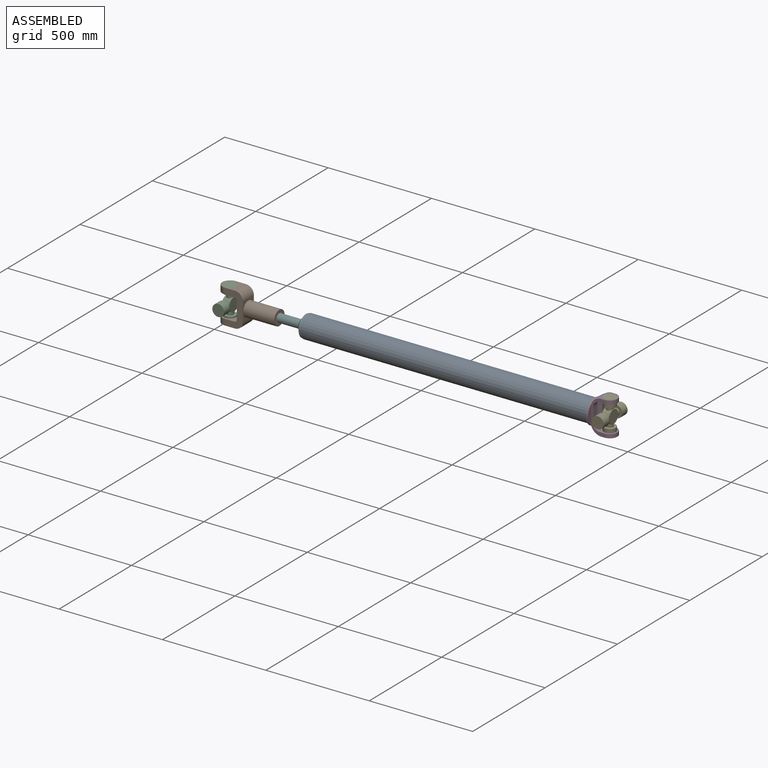
[diagram: assembled view]
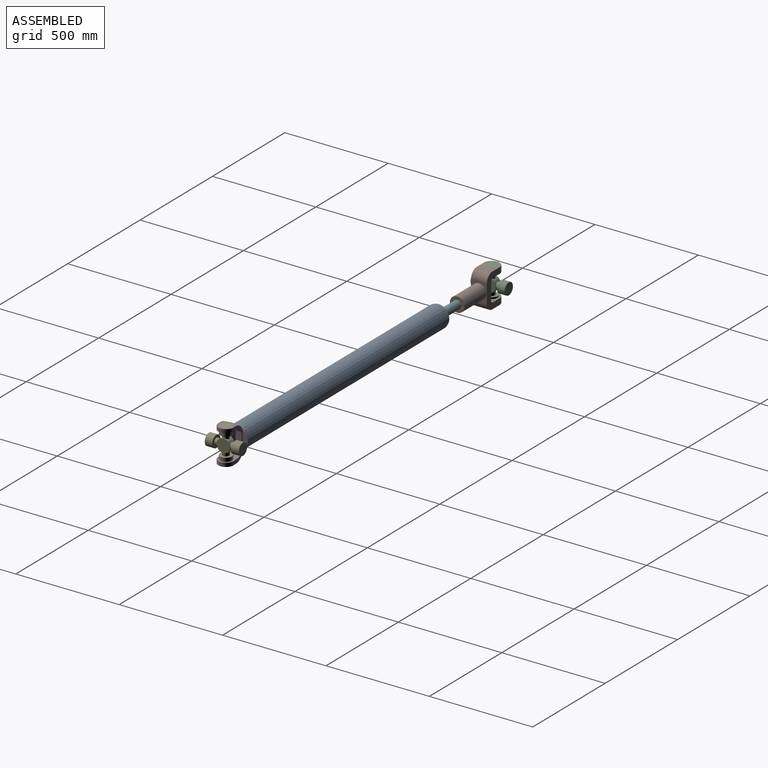
[diagram: assembled view, second angle]
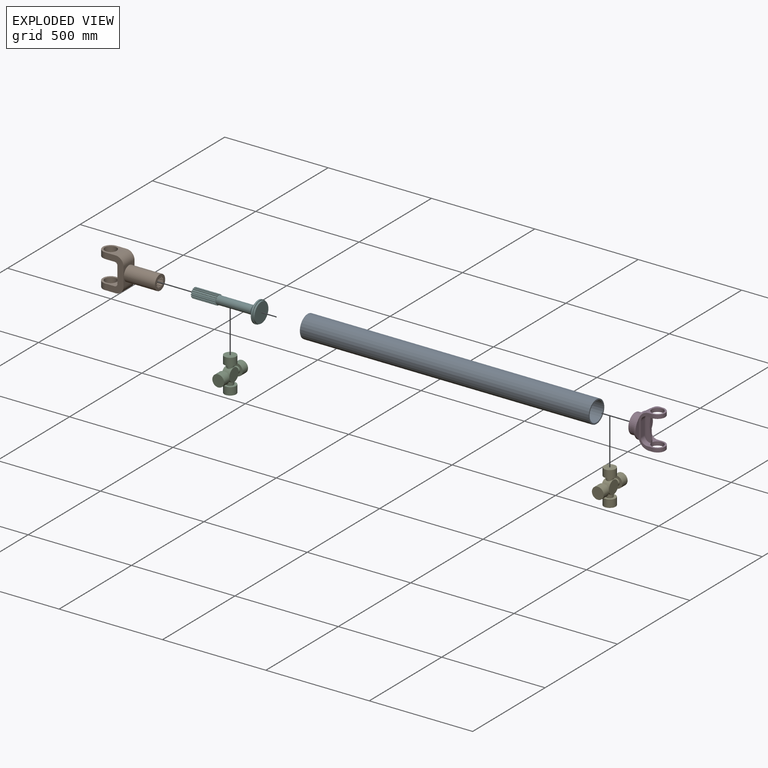
[diagram: exploded view]
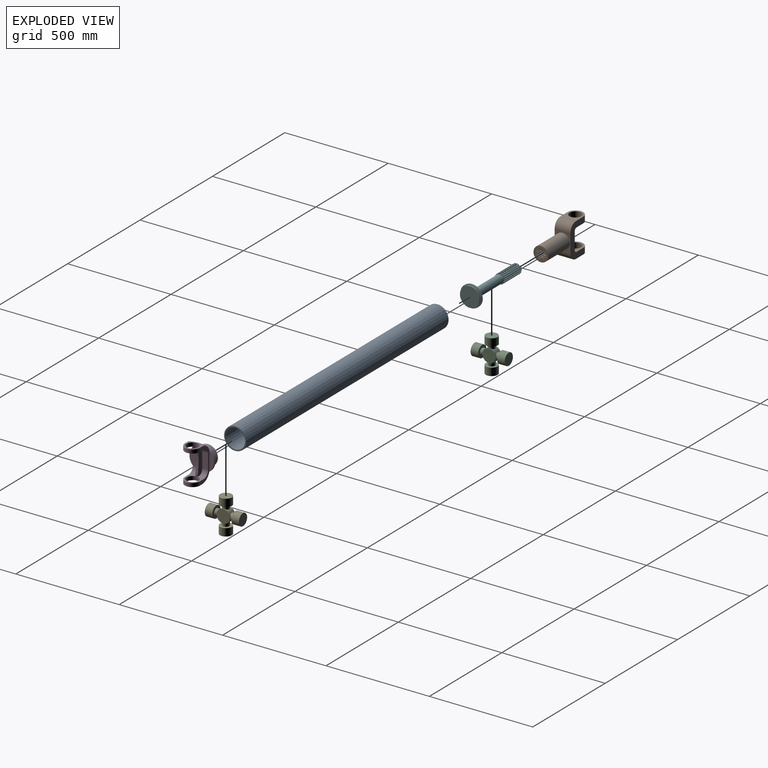
[diagram: exploded view, second angle]
ASSEMBLY  parts=6 mates=5
PART A: 4 faces, bbox 108x108x1397 mm
  f0: cylinder r=47.62mm len=1397mm, axis (0,0,-1), area 418033.7mm2, adj f2,f3
  f1: cylinder r=53.98mm len=1397mm, axis (0,0,-1), area 473771.5mm2, adj f2,f3
  f2: plane 107.95x107.95mm, normal (0,0,1), area 2026.8mm2, adj f0,f1
  f3: plane 107.95x107.95mm, normal (0,0,-1), area 2026.8mm2, adj f0,f1
PART B: 82 faces, bbox 165.1x76.2x276.2 mm
  f0: plane 179.41x3.68mm, normal (-0.92,0.38,0), area 715mm2, adj f1,f64,f68,f75
  f1: cylinder r=23.81mm len=179.41mm, axis (0,0,-1), area 712.9mm2, adj f0,f2,f68,f75
  f2: plane 179.41x3.68mm, normal (0.92,-0.38,0), area 715mm2, adj f1,f65,f68,f75
  f3: plane 179.41x2.82mm, normal (-0.71,0.71,0), area 715mm2, adj f4,f65,f68,f75
  f4: cylinder r=23.81mm len=179.41mm, axis (0,0,-1), area 712.9mm2, adj f3,f5,f68,f75
  f5: plane 179.41x2.82mm, normal (0.71,-0.71,0), area 715mm2, adj f4,f66,f68,f75
  f6: plane 179.41x3.68mm, normal (-0.38,0.92,0), area 715mm2, adj f7,f66,f68,f75
  f7: cylinder r=23.81mm len=179.41mm, axis (0,0,-1), area 712.9mm2, adj f6,f8,f68,f75
  f8: plane 179.41x3.68mm, normal (0.38,-0.92,0), area 715mm2, adj f7,f67,f68,f75
  f9: plane 179.41x3.99mm, normal (0,1,0), area 715mm2, adj f10,f67,f68,f75
  f10: cylinder r=23.81mm len=179.41mm, axis (0,0,-1), area 712.9mm2, adj f9,f11,f68,f75
  f11: plane 179.41x3.99mm, normal (0,-1,0), area 715mm2, adj f10,f52,f68,f75
  f12: plane 179.41x3.68mm, normal (0.38,0.92,0), area 715mm2, adj f13,f52,f68,f75
  f13: cylinder r=23.81mm len=179.41mm, axis (0,0,-1), area 712.9mm2, adj f12,f14,f68,f75
  f14: plane 179.41x3.68mm, normal (-0.38,-0.92,0), area 715mm2, adj f13,f53,f68,f75
  f15: plane 179.41x2.82mm, normal (0.71,0.71,0), area 715mm2, adj f16,f53,f68,f75
  f16: cylinder r=23.81mm len=179.41mm, axis (0,0,-1), area 712.9mm2, adj f15,f17,f68,f75
  f17: plane 179.41x2.82mm, normal (-0.71,-0.71,0), area 715mm2, adj f16,f54,f68,f75
  f18: plane 179.41x3.68mm, normal (0.92,0.38,0), area 715mm2, adj f19,f54,f68,f75
  f19: cylinder r=23.81mm len=179.41mm, axis (0,0,-1), area 712.9mm2, adj f18,f20,f68,f75
  f20: plane 179.41x3.68mm, normal (-0.92,-0.38,0), area 715mm2, adj f19,f55,f68,f75
  f21: plane 179.41x3.99mm, normal (1,0,0), area 715mm2, adj f22,f55,f68,f75
  f22: cylinder r=23.81mm len=179.41mm, axis (0,0,-1), area 712.9mm2, adj f21,f23,f68,f75
  f23: plane 179.41x3.99mm, normal (-1,0,0), area 715mm2, adj f22,f56,f68,f75
  f24: plane 179.41x3.68mm, normal (0.92,-0.38,0), area 715mm2, adj f25,f56,f68,f75
  f25: cylinder r=23.81mm len=179.41mm, axis (0,0,-1), area 712.9mm2, adj f24,f26,f68,f75
  f26: plane 179.41x3.68mm, normal (-0.92,0.38,0), area 715mm2, adj f25,f57,f68,f75
  f27: plane 179.41x2.82mm, normal (0.71,-0.71,0), area 715mm2, adj f28,f57,f68,f75
  f28: cylinder r=23.81mm len=179.41mm, axis (0,0,-1), area 712.9mm2, adj f27,f29,f68,f75
  f29: plane 179.41x2.82mm, normal (-0.71,0.71,0), area 715mm2, adj f28,f58,f68,f75
  f30: plane 179.41x3.68mm, normal (0.38,-0.92,0), area 715mm2, adj f31,f58,f68,f75
  f31: cylinder r=23.81mm len=179.41mm, axis (0,0,-1), area 712.9mm2, adj f30,f32,f68,f75
  f32: plane 179.41x3.68mm, normal (-0.38,0.92,0), area 715mm2, adj f31,f59,f68,f75
  f33: plane 179.41x3.99mm, normal (0,-1,0), area 715mm2, adj f34,f59,f68,f75
  f34: cylinder r=23.81mm len=179.41mm, axis (0,0,-1), area 712.9mm2, adj f33,f35,f68,f75
  f35: plane 179.41x3.99mm, normal (0,1,0), area 715mm2, adj f34,f60,f68,f75
  f36: plane 179.41x3.68mm, normal (-0.38,-0.92,0), area 715mm2, adj f37,f60,f68,f75
  f37: cylinder r=23.81mm len=179.41mm, axis (0,0,-1), area 712.9mm2, adj f36,f38,f68,f75
  f38: plane 179.41x3.68mm, normal (0.38,0.92,0), area 715mm2, adj f37,f61,f68,f75
  f39: plane 179.41x2.82mm, normal (-0.71,-0.71,0), area 715mm2, adj f40,f61,f68,f75
  f40: cylinder r=23.81mm len=179.41mm, axis (0,0,-1), area 712.9mm2, adj f39,f41,f68,f75
  f41: plane 179.41x2.82mm, normal (0.71,0.71,0), area 715mm2, adj f40,f62,f68,f75
  f42: plane 179.41x3.68mm, normal (-0.92,-0.38,0), area 715mm2, adj f43,f62,f68,f75
  f43: cylinder r=23.81mm len=179.41mm, axis (0,0,-1), area 712.9mm2, adj f42,f44,f68,f75
  f44: plane 179.41x3.68mm, normal (0.92,0.38,0), area 715mm2, adj f43,f63,f68,f75
  f45: cylinder r=38.1mm len=76.2mm, axis (-1,0,0), area 3481.7mm2, adj f47,f48,f72,f76
  f46: cylinder r=28.57mm len=57.15mm, axis (-1,0,0), area 5222.6mm2, adj f72,f76
  f47: plane 165.1x88.32mm, normal (0,1,0), area 7745.5mm2, adj f45,f69,f71,f72,f73,f75,f76,f77
  f48: plane 165.1x88.32mm, normal (0,-1,0), area 7745.5mm2, adj f45,f69,f71,f72,f73,f75,f76,f77
  f49: plane 179.41x3.99mm, normal (1,0,0), area 715mm2, adj f50,f64,f68,f75
  f50: cylinder r=23.81mm len=179.41mm, axis (0,0,-1), area 712.9mm2, adj f49,f51,f68,f75
  f51: plane 179.41x3.99mm, normal (-1,0,0), area 715mm2, adj f50,f63,f68,f75
  f52: cylinder r=19.84mm len=179.41mm, axis (0,0,-1), area 684.8mm2, adj f11,f12,f68,f75
  f53: cylinder r=19.84mm len=179.41mm, axis (0,0,-1), area 684.8mm2, adj f14,f15,f68,f75
  f54: cylinder r=19.84mm len=179.41mm, axis (0,0,-1), area 684.8mm2, adj f17,f18,f68,f75
  f55: cylinder r=19.84mm len=179.41mm, axis (0,0,-1), area 684.8mm2, adj f20,f21,f68,f75
  f56: cylinder r=19.84mm len=179.41mm, axis (0,0,-1), area 684.8mm2, adj f23,f24,f68,f75
  f57: cylinder r=19.84mm len=179.41mm, axis (0,0,-1), area 684.8mm2, adj f26,f27,f68,f75
  f58: cylinder r=19.84mm len=179.41mm, axis (0,0,-1), area 684.8mm2, adj f29,f30,f68,f75
  f59: cylinder r=19.84mm len=179.41mm, axis (0,0,-1), area 684.8mm2, adj f32,f33,f68,f75
  f60: cylinder r=19.84mm len=179.41mm, axis (0,0,-1), area 684.8mm2, adj f35,f36,f68,f75
  f61: cylinder r=19.84mm len=179.41mm, axis (0,0,-1), area 684.8mm2, adj f38,f39,f68,f75
  f62: cylinder r=19.84mm len=179.41mm, axis (0,0,-1), area 684.8mm2, adj f41,f42,f68,f75
  f63: cylinder r=19.84mm len=179.41mm, axis (0,0,-1), area 684.8mm2, adj f44,f51,f68,f75
  f64: cylinder r=19.84mm len=179.41mm, axis (0,0,-1), area 684.8mm2, adj f0,f49,f68,f75
  f65: cylinder r=19.84mm len=179.41mm, axis (0,0,-1), area 684.8mm2, adj f2,f3,f68,f75
  f66: cylinder r=19.84mm len=179.41mm, axis (0,0,-1), area 684.8mm2, adj f5,f6,f68,f75
  f67: cylinder r=19.84mm len=179.41mm, axis (0,0,-1), area 684.8mm2, adj f8,f9,f68,f75
  f68: plane 71.44x71.44mm, normal (0,0,-1), area 2518.7mm2, adj f0,f1,f2,f3,f4,f5,f6,f7
  f69: cylinder r=38.1mm len=76.2mm, axis (-1,0,0), area 3481.7mm2, adj f47,f48,f73,f77
  f70: cylinder r=28.57mm len=57.15mm, axis (-1,0,0), area 5222.6mm2, adj f73,f77
  f71: plane 88.45x76.2mm, normal (0,0,-1), area 2731.7mm2, adj f47,f48,f74,f80,f81
  f72: plane 88.09x76.2mm, normal (1,0,0), area 3524.3mm2, adj f45,f46,f47,f48,f81
  f73: plane 88.09x76.2mm, normal (-1,0,0), area 3524.3mm2, adj f47,f48,f69,f70,f80
  f74: cylinder r=35.72mm len=149.81mm, axis (0,0,-1), area 33621.1mm2, adj f68,f71
  f75: plane 80.86x76.2mm, normal (0,0,1), area 4672.2mm2, adj f0,f1,f2,f3,f4,f5,f6,f7
  f76: plane 83.79x76.2mm, normal (-1,0,0), area 3196.2mm2, adj f45,f46,f47,f48,f79
  f77: plane 83.79x76.2mm, normal (1,0,0), area 3196.2mm2, adj f47,f48,f69,f70,f78
  f78: cylinder r=13.03mm len=76.2mm, axis (0,-1,0), area 1559.7mm2, adj f47,f48,f75,f77
  f79: cylinder r=13.03mm len=76.2mm, axis (0,1,0), area 1559.7mm2, adj f47,f48,f75,f76
  f80: cylinder r=38.33mm len=76.2mm, axis (0,1,0), area 4587.4mm2, adj f47,f48,f71,f73
  f81: cylinder r=38.33mm len=76.2mm, axis (0,-1,0), area 4587.4mm2, adj f47,f48,f71,f72
PART C: 19 faces, bbox 165.1x165.1x57.2 mm
  f0: cylinder r=32.1mm len=64.21mm, axis (0,0,-1), area 4050.3mm2, adj f1,f2,f3,f7,f11,f15
  f1: plane 64.21x64.21mm, normal (0,0,1), area 3237.7mm2, adj f0
  f2: plane 64.21x64.21mm, normal (0,0,-1), area 3237.7mm2, adj f0
  f3: cylinder r=16.05mm len=32.1mm, axis (0,-1,0), area 1600.7mm2, adj f0,f5
  f4: cylinder r=28.58mm len=57.15mm, axis (0,-1,0), area 6587.2mm2, adj f5,f6
  f5: plane 57.15x57.15mm, normal (0,1,0), area 1755.8mm2, adj f3,f4
  f6: plane 57.15x57.15mm, normal (0,-1,0), area 2565.2mm2, adj f4
  f7: cylinder r=16.05mm len=32.1mm, axis (0,1,0), area 1600.7mm2, adj f0,f9
  f8: cylinder r=28.58mm len=57.15mm, axis (0,1,0), area 6587.2mm2, adj f9,f10
  f9: plane 57.15x57.15mm, normal (0,-1,0), area 1755.8mm2, adj f7,f8
  f10: plane 57.15x57.15mm, normal (0,1,0), area 2565.2mm2, adj f8
  f11: cylinder r=16.05mm len=32.1mm, axis (1,0,0), area 1600.6mm2, adj f0,f13
  f12: cylinder r=28.58mm len=57.15mm, axis (1,0,0), area 6587.2mm2, adj f13,f14
  f13: plane 57.15x57.15mm, normal (-1,0,0), area 1755.8mm2, adj f11,f12
  f14: plane 57.15x57.15mm, normal (1,0,0), area 2565.2mm2, adj f12
  f15: cylinder r=16.05mm len=32.1mm, axis (-1,0,0), area 1600.6mm2, adj f0,f17
  f16: cylinder r=28.58mm len=57.15mm, axis (-1,0,0), area 6587.2mm2, adj f17,f18
  f17: plane 57.15x57.15mm, normal (1,0,0), area 1755.8mm2, adj f15,f16
  f18: plane 57.15x57.15mm, normal (-1,0,0), area 2565.2mm2, adj f16
PART D: 31 faces, bbox 124.7x170.5x150 mm
  f0: cylinder r=28.58mm len=57.15mm, axis (0,1,0), area 3385.9mm2, adj f10,f11,f18,f20,f21,f23,f24,f26
  f1: cylinder r=59.62mm len=119.24mm, axis (0,0,-1), area 3435.9mm2, adj f4,f5,f21,f22,f25
  f2: plane 170.51x69.62mm, normal (1,0,0), area 2946.5mm2, adj f3,f5,f7,f9,f10,f11,f12,f14
  f3: cylinder r=36.69mm len=73.38mm, axis (0,1,0), area 2114.4mm2, adj f2,f6,f9,f12
  f4: plane 93.99x22.93mm, normal (0,0,1), area 1503mm2, adj f1,f6
  f5: plane 93.99x22.93mm, normal (0,0,1), area 1503mm2, adj f1,f2
  f6: plane 170.51x69.62mm, normal (-1,0,0), area 2946.5mm2, adj f3,f4,f7,f9,f10,f11,f12,f16
  f7: cylinder r=36.69mm len=73.38mm, axis (0,1,0), area 2114.4mm2, adj f2,f6,f10,f11
  f8: cylinder r=28.58mm len=57.15mm, axis (0,1,0), area 3370.1mm2, adj f9,f12,f17,f19,f22,f23,f24,f26
  f9: plane 73.38x54.04mm, normal (0,-1,0), area 1130.3mm2, adj f2,f3,f6,f8,f22
  f10: plane 73.38x54.04mm, normal (0,1,0), area 1130.3mm2, adj f0,f2,f6,f7,f21
  f11: plane 73.38x62.37mm, normal (0,-1,0), area 1482.5mm2, adj f0,f2,f6,f7,f18,f20
  f12: plane 73.38x62.37mm, normal (0,1,0), area 1482.5mm2, adj f2,f3,f6,f8,f17,f19
  f13: plane 107.06x6.71mm, normal (1,0,0), area 639mm2, adj f14,f19,f20,f24
  f14: plane 69.71x27.52mm, normal (0,0,1), area 1918.2mm2, adj f2,f13,f19,f20
  f15: plane 107.06x6.71mm, normal (-1,0,0), area 639mm2, adj f16,f17,f18,f23
  f16: plane 69.71x27.52mm, normal (0,0,1), area 1918.2mm2, adj f6,f15,f17,f18
  f17: cylinder r=29.35mm len=31.1mm, axis (1,0,0), area 1311mm2, adj f6,f8,f12,f15,f16,f23
  f18: cylinder r=29.35mm len=31.1mm, axis (-1,0,0), area 1311mm2, adj f0,f6,f11,f15,f16,f23
  f19: cylinder r=29.35mm len=31.1mm, axis (-1,0,0), area 1311mm2, adj f2,f8,f12,f13,f14,f24
  f20: cylinder r=29.35mm len=31.1mm, axis (1,0,0), area 1311mm2, adj f0,f2,f11,f13,f14,f24
  f21: bspline ~90.85x50.07mm, area 4210.6mm2, adj f0,f1,f2,f6,f10
  f22: bspline ~90.85x50.07mm, area 4210.6mm2, adj f1,f2,f6,f8,f9
  f23: plane 130.01x22.08mm, normal (-0.98,0,0.17), area 2101.6mm2, adj f0,f8,f15,f17,f18,f26
  f24: plane 130.01x22.08mm, normal (0.98,0,0.17), area 2101.6mm2, adj f0,f8,f13,f19,f20,f26
  f25: plane 119.24x119.24mm, normal (0,0,-1), area 4041.1mm2, adj f1,f27
  f26: cylinder r=333.66mm len=115.68mm, axis (1,0,0), area 1276.1mm2, adj f0,f8,f23,f24
  f27: cylinder r=47.62mm len=95.25mm, axis (0,0,-1), area 10319.9mm2, adj f25,f30
  f28: plane 81.89x81.89mm, normal (0,0,-1), area 5266.8mm2, adj f29
  f29: cylinder r=40.94mm len=81.89mm, axis (0,0,-1), area 8872.4mm2, adj f28,f30
  f30: plane 95.25x95.25mm, normal (0,0,-1), area 1858.8mm2, adj f27,f29
PART E: same geometry as C
PART F: 71 faces, bbox 103.2x103.2x325.4 mm
  f0: cylinder r=19.84mm len=285.75mm, axis (0,0,-1), area 28176.3mm2, adj f3,f4,f7,f9,f10,f11,f13,f14
  f1: cylinder r=47.62mm len=95.25mm, axis (0,0,-1), area 2375.2mm2, adj f5,f6
  f2: cylinder r=51.59mm len=103.19mm, axis (0,0,-1), area 2573.1mm2, adj f3,f5
  f3: cone r=51.59mm half-angle=53.1deg, axis (0,0,-1), area 8907mm2, adj f0,f2
  f4: plane 47.56x47.56mm, normal (0,0,1), area 1483.4mm2, adj f0,f7,f8,f9,f11,f12,f13,f15
  f5: plane 103.19x103.19mm, normal (0,0,-1), area 1237.1mm2, adj f1,f2
  f6: plane 95.25x95.25mm, normal (0,0,-1), area 7125.6mm2, adj f1
  f7: plane 119.06x3.95mm, normal (1,0,0), area 470.7mm2, adj f0,f4,f8,f10
  f8: cylinder r=23.78mm len=119.06mm, axis (0,0,1), area 465.5mm2, adj f4,f7,f9,f10
  f9: plane 119.06x3.95mm, normal (-1,0,0), area 470.7mm2, adj f0,f4,f8,f10
  f10: plane 4.03x3.91mm, normal (0,0,-1), area 15.4mm2, adj f0,f7,f8,f9
  f11: plane 119.06x3.65mm, normal (0.92,0.38,0), area 470.7mm2, adj f0,f4,f12,f14
  f12: cylinder r=23.78mm len=119.06mm, axis (0,0,1), area 465.5mm2, adj f4,f11,f13,f14
  f13: plane 119.06x3.65mm, normal (-0.92,-0.38,0), area 470.7mm2, adj f0,f4,f12,f14
  f14: plane 5.15x5.12mm, normal (0,0,-1), area 15.4mm2, adj f0,f11,f12,f13
  f15: plane 119.06x2.8mm, normal (0.71,0.71,0), area 470.7mm2, adj f0,f4,f16,f18
  f16: cylinder r=23.78mm len=119.06mm, axis (0,0,1), area 465.5mm2, adj f4,f15,f17,f18
  f17: plane 119.06x2.8mm, normal (-0.71,-0.71,0), area 470.7mm2, adj f0,f4,f16,f18
  f18: plane 5.56x5.56mm, normal (0,0,-1), area 15.4mm2, adj f0,f15,f16,f17
  f19: plane 119.06x3.65mm, normal (0.38,0.92,0), area 470.7mm2, adj f0,f4,f20,f22
  f20: cylinder r=23.78mm len=119.06mm, axis (0,0,1), area 465.5mm2, adj f4,f19,f21,f22
  f21: plane 119.06x3.65mm, normal (-0.38,-0.92,0), area 470.7mm2, adj f0,f4,f20,f22
  f22: plane 5.15x5.12mm, normal (0,0,-1), area 15.4mm2, adj f0,f19,f20,f21
  f23: plane 119.06x3.95mm, normal (0,1,0), area 470.7mm2, adj f0,f4,f24,f26
  f24: cylinder r=23.78mm len=119.06mm, axis (0,0,1), area 465.5mm2, adj f4,f23,f25,f26
  f25: plane 119.06x3.95mm, normal (0,-1,0), area 470.7mm2, adj f0,f4,f24,f26
  f26: plane 4.03x3.91mm, normal (0,0,-1), area 15.4mm2, adj f0,f23,f24,f25
  f27: plane 119.06x3.65mm, normal (-0.38,0.92,0), area 470.7mm2, adj f0,f4,f28,f30
  f28: cylinder r=23.78mm len=119.06mm, axis (0,0,1), area 465.5mm2, adj f4,f27,f29,f30
  f29: plane 119.06x3.65mm, normal (0.38,-0.92,0), area 470.7mm2, adj f0,f4,f28,f30
  f30: plane 5.15x5.12mm, normal (0,0,-1), area 15.4mm2, adj f0,f27,f28,f29
  f31: plane 119.06x2.8mm, normal (-0.71,0.71,0), area 470.7mm2, adj f0,f4,f32,f34
  f32: cylinder r=23.78mm len=119.06mm, axis (0,0,1), area 465.5mm2, adj f4,f31,f33,f34
  f33: plane 119.06x2.8mm, normal (0.71,-0.71,0), area 470.7mm2, adj f0,f4,f32,f34
  f34: plane 5.56x5.56mm, normal (0,0,-1), area 15.4mm2, adj f0,f31,f32,f33
  f35: plane 119.06x3.65mm, normal (-0.92,0.38,0), area 470.7mm2, adj f0,f4,f36,f38
  f36: cylinder r=23.78mm len=119.06mm, axis (0,0,1), area 465.5mm2, adj f4,f35,f37,f38
  f37: plane 119.06x3.65mm, normal (0.92,-0.38,0), area 470.7mm2, adj f0,f4,f36,f38
  f38: plane 5.15x5.12mm, normal (0,0,-1), area 15.4mm2, adj f0,f35,f36,f37
  f39: plane 119.06x3.95mm, normal (-1,0,0), area 470.7mm2, adj f0,f4,f40,f42
  f40: cylinder r=23.78mm len=119.06mm, axis (0,0,1), area 465.5mm2, adj f4,f39,f41,f42
  f41: plane 119.06x3.95mm, normal (1,0,0), area 470.7mm2, adj f0,f4,f40,f42
  f42: plane 4.03x3.91mm, normal (0,0,-1), area 15.4mm2, adj f0,f39,f40,f41
  f43: plane 119.06x3.65mm, normal (-0.92,-0.38,0), area 470.7mm2, adj f0,f4,f44,f46
  f44: cylinder r=23.78mm len=119.06mm, axis (0,0,1), area 465.5mm2, adj f4,f43,f45,f46
  f45: plane 119.06x3.65mm, normal (0.92,0.38,0), area 470.7mm2, adj f0,f4,f44,f46
  f46: plane 5.15x5.12mm, normal (0,0,-1), area 15.4mm2, adj f0,f43,f44,f45
  f47: plane 119.06x2.8mm, normal (-0.71,-0.71,0), area 470.7mm2, adj f0,f4,f48,f50
  f48: cylinder r=23.78mm len=119.06mm, axis (0,0,1), area 465.5mm2, adj f4,f47,f49,f50
  f49: plane 119.06x2.8mm, normal (0.71,0.71,0), area 470.7mm2, adj f0,f4,f48,f50
  f50: plane 5.56x5.56mm, normal (0,0,-1), area 15.4mm2, adj f0,f47,f48,f49
  f51: plane 119.06x3.65mm, normal (-0.38,-0.92,0), area 470.7mm2, adj f0,f4,f52,f54
  f52: cylinder r=23.78mm len=119.06mm, axis (0,0,1), area 465.5mm2, adj f4,f51,f53,f54
  f53: plane 119.06x3.65mm, normal (0.38,0.92,0), area 470.7mm2, adj f0,f4,f52,f54
  f54: plane 5.15x5.12mm, normal (0,0,-1), area 15.4mm2, adj f0,f51,f52,f53
  f55: plane 119.06x3.95mm, normal (0,-1,0), area 470.7mm2, adj f0,f4,f56,f58
  f56: cylinder r=23.78mm len=119.06mm, axis (0,0,1), area 465.5mm2, adj f4,f55,f57,f58
  f57: plane 119.06x3.95mm, normal (0,1,0), area 470.7mm2, adj f0,f4,f56,f58
  f58: plane 4.03x3.91mm, normal (0,0,-1), area 15.4mm2, adj f0,f55,f56,f57
  f59: plane 119.06x3.65mm, normal (0.38,-0.92,0), area 470.7mm2, adj f0,f4,f60,f62
  f60: cylinder r=23.78mm len=119.06mm, axis (0,0,1), area 465.5mm2, adj f4,f59,f61,f62
  f61: plane 119.06x3.65mm, normal (-0.38,0.92,0), area 470.7mm2, adj f0,f4,f60,f62
  f62: plane 5.15x5.12mm, normal (0,0,-1), area 15.4mm2, adj f0,f59,f60,f61
  f63: plane 119.06x2.8mm, normal (0.71,-0.71,0), area 470.7mm2, adj f0,f4,f64,f66
  f64: cylinder r=23.78mm len=119.06mm, axis (0,0,1), area 465.5mm2, adj f4,f63,f65,f66
  f65: plane 119.06x2.8mm, normal (-0.71,0.71,0), area 470.7mm2, adj f0,f4,f64,f66
  f66: plane 5.56x5.56mm, normal (0,0,-1), area 15.4mm2, adj f0,f63,f64,f65
  f67: plane 119.06x3.65mm, normal (0.92,-0.38,0), area 470.7mm2, adj f0,f4,f68,f70
  f68: cylinder r=23.78mm len=119.06mm, axis (0,0,1), area 465.5mm2, adj f4,f67,f69,f70
  f69: plane 119.06x3.65mm, normal (-0.92,0.38,0), area 470.7mm2, adj f0,f4,f68,f70
  f70: plane 5.15x5.12mm, normal (0,0,-1), area 15.4mm2, adj f0,f67,f68,f69
PLACE A rot(axis=(0,-1,0),90deg) t=(698.5,0,0)mm
PLACE B rot(axis=(0,-1,0),90deg) t=(-835.03,0,0)mm
PLACE C rot(axis=(0.58,-0.58,-0.58),120deg) t=(-1073.15,0,0)mm
PLACE D rot(axis=(-0.58,0.58,-0.58),120deg) t=(661.81,0,0)mm
PLACE E rot(axis=(-0.58,-0.58,0.58),120deg) t=(762.71,0,0)mm
PLACE F rot(axis=(-0.58,-0.58,0.58),120deg) t=(-658.81,0,0)mm
MATE revolute D.f1 <-> A.f0  axis (1,0,0) through (698.5,0,0)mm
MATE revolute E.f4 <-> D.f0  axis (0,0,1) through (762.71,0,82.55)mm
MATE revolute F.f1 <-> A.f0  axis (1,0,0) through (-698.5,0,0)mm
MATE cylindrical B.f74 <-> F.f0  axis (1,0,0) through (-835.03,0,0)mm
MATE revolute C.f4 <-> B.f45  axis (0,0,1) through (-1073.15,0,82.55)mm
